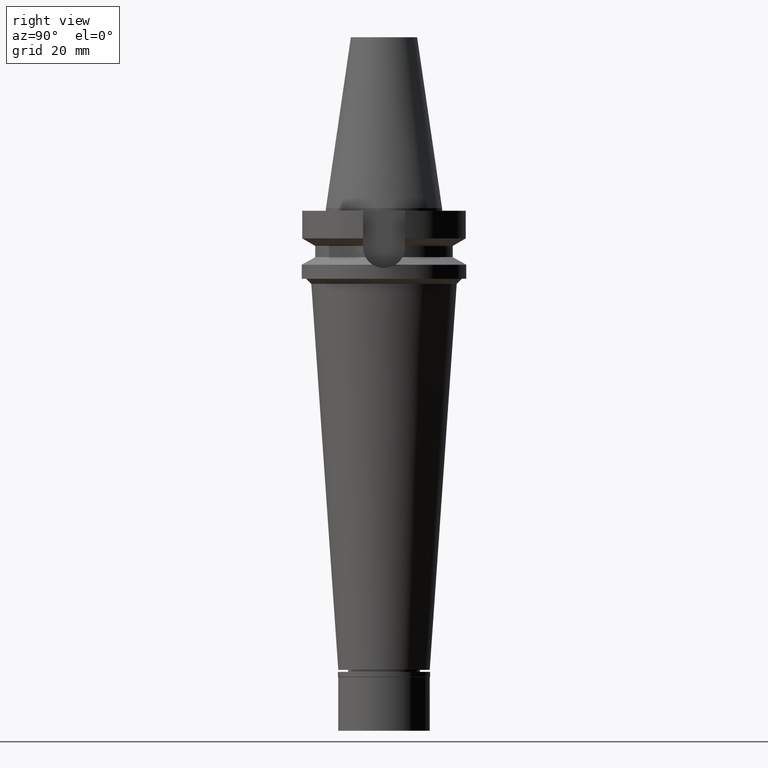
[diagram: clean part render]
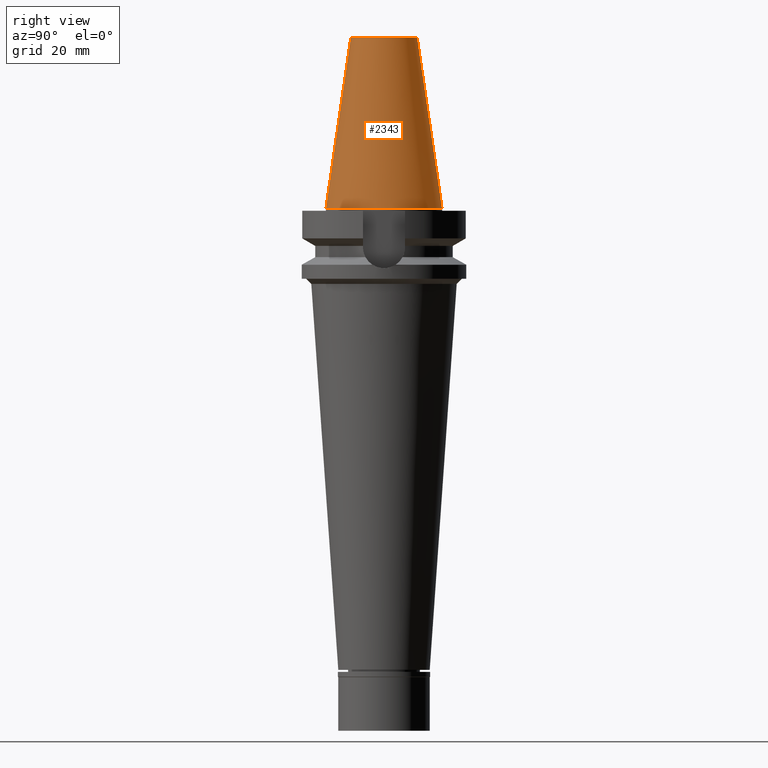
[diagram: same view with one face highlighted and labeled with its STEP entity id]
A machine part, right view. The second image highlights one B-rep face of the part: STEP entity #2343.
In plain terms, the highlighted conical surface has half-angle 8.297 deg.
Its self-contained STEP definition (entity closure, byte-faithful):
#8 = DIRECTION ( 'NONE',  ( 0.0000000000000000000, -0.1443043893539925626, -0.9895333461855498891 ) ) ;
#185 = AXIS2_PLACEMENT_3D ( 'NONE', #1315, #1805, #1529 ) ;
#279 = FACE_OUTER_BOUND ( 'NONE', #3055, .T. ) ;
#318 = CARTESIAN_POINT ( 'NONE',  ( 0.0000000000000000000, 22.22500000000000142, 9.237055564880999494E-14 ) ) ;
#443 = CIRCLE ( 'NONE', #185, 22.22500000000000142 ) ;
#509 = CARTESIAN_POINT ( 'NONE',  ( 0.0000000000000000000, 1.625106302469000024E-14, 32.70000000000000284 ) ) ;
#539 = CARTESIAN_POINT ( 'NONE',  ( 0.0000000000000000000, 12.68766899429999917, 65.40000000000000568 ) ) ;
#579 = AXIS2_PLACEMENT_3D ( 'NONE', #509, #1466, #1247 ) ;
#649 = VECTOR ( 'NONE', #8, 1000.000000000000114 ) ;
#704 = EDGE_CURVE ( 'NONE', #1044, #941, #2979, .T. ) ;
#795 = VECTOR ( 'NONE', #1760, 1000.000000000000114 ) ;
#836 = EDGE_CURVE ( 'NONE', #1921, #2018, #1992, .T. ) ;
#941 = VERTEX_POINT ( 'NONE', #1792 ) ;
#1044 = VERTEX_POINT ( 'NONE', #2660 ) ;
#1057 = AXIS2_PLACEMENT_3D ( 'NONE', #2493, #1080, #1593 ) ;
#1080 = DIRECTION ( 'NONE',  ( 0.0000000000000000000, 0.0000000000000000000, -1.000000000000000000 ) ) ;
#1169 = ORIENTED_EDGE ( 'NONE', *, *, #1909, .F. ) ;
#1247 = DIRECTION ( 'NONE',  ( 0.0000000000000000000, -1.000000000000000000, 0.0000000000000000000 ) ) ;
#1315 = CARTESIAN_POINT ( 'NONE',  ( 0.0000000000000000000, 1.625106302469000024E-14, 1.136868377215999875E-13 ) ) ;
#1466 = DIRECTION ( 'NONE',  ( 0.0000000000000000000, 0.0000000000000000000, -1.000000000000000000 ) ) ;
#1529 = DIRECTION ( 'NONE',  ( 0.0000000000000000000, 1.000000000000000000, 0.0000000000000000000 ) ) ;
#1593 = DIRECTION ( 'NONE',  ( 0.0000000000000000000, 1.000000000000000000, 0.0000000000000000000 ) ) ;
#1760 = DIRECTION ( 'NONE',  ( 0.0000000000000000000, 0.1443043893539925626, -0.9895333461855498891 ) ) ;
#1792 = CARTESIAN_POINT ( 'NONE',  ( 0.0000000000000000000, -22.22500000000000142, 9.237055564880999494E-14 ) ) ;
#1805 = DIRECTION ( 'NONE',  ( 0.0000000000000000000, 0.0000000000000000000, -1.000000000000000000 ) ) ;
#1857 = ORIENTED_EDGE ( 'NONE', *, *, #704, .T. ) ;
#1909 = EDGE_CURVE ( 'NONE', #2018, #941, #443, .T. ) ;
#1921 = VERTEX_POINT ( 'NONE', #2004 ) ;
#1992 = LINE ( 'NONE', #539, #795 ) ;
#2004 = CARTESIAN_POINT ( 'NONE',  ( 0.0000000000000000000, 12.68766899429999917, 65.40000000000000568 ) ) ;
#2018 = VERTEX_POINT ( 'NONE', #318 ) ;
#2343 = ADVANCED_FACE ( 'NONE', ( #279 ), #2702, .T. ) ;
#2481 = CARTESIAN_POINT ( 'NONE',  ( 0.0000000000000000000, -12.68766899429999917, 65.40000000000000568 ) ) ;
#2493 = CARTESIAN_POINT ( 'NONE',  ( 0.0000000000000000000, 1.625106302469000024E-14, 65.40000000000000568 ) ) ;
#2519 = ORIENTED_EDGE ( 'NONE', *, *, #2946, .T. ) ;
#2613 = CIRCLE ( 'NONE', #1057, 12.68766899429999917 ) ;
#2660 = CARTESIAN_POINT ( 'NONE',  ( 0.0000000000000000000, -12.68766899429999917, 65.40000000000000568 ) ) ;
#2702 = CONICAL_SURFACE ( 'NONE', #579, 17.45633449714999941, 0.1448099680379422438 ) ;
#2946 = EDGE_CURVE ( 'NONE', #1921, #1044, #2613, .T. ) ;
#2979 = LINE ( 'NONE', #2481, #649 ) ;
#3052 = ORIENTED_EDGE ( 'NONE', *, *, #836, .F. ) ;
#3055 = EDGE_LOOP ( 'NONE', ( #2519, #1857, #1169, #3052 ) ) ;